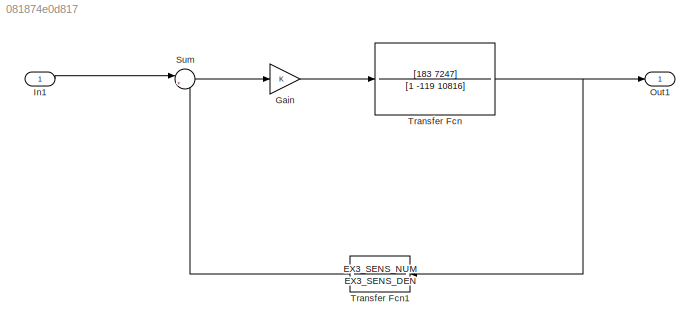
MODEL slx_081874e0d817
KIND model
CONFIG AbsTol = auto
CONFIG EnableMultiTasking = off
CONFIG FixedStep = t(2)-t(1)
CONFIG MaxStep = Auto
CONFIG MinStep = Auto
CONFIG RelTol = 1e-3
CONFIG SampleTimeConstraint = Unconstrained
CONFIG SolverName = VariableStepAuto
CONFIG StartTime = t(1)
CONFIG StopTime = t(end)
BLOCK [Gain] Gain
  Gain = K
BLOCK [Inport] In1
BLOCK [Outport] Out1
BLOCK [Sum] Sum
  Inputs = |+-
BLOCK [TransferFcn] Transfer Fcn
  Denominator = [1 -119 10816]
  Numerator = [183 7247]
  ParameterTunability = Unconstrained
BLOCK [TransferFcn] Transfer Fcn1
  Denominator = EX3_SENS_DEN
  NameLocation = top
  Numerator = EX3_SENS_NUM
LINE Gain:1 -> Transfer Fcn:1
LINE In1:1 -> Sum:1
LINE Sum:1 -> Gain:1
LINE Transfer Fcn1:1 -> Sum:2
NET Transfer Fcn:1 -> Out1:1, Transfer Fcn1:1
note: NET lines group one-source signal fan-out (src -> all destinations, sorted); 1:1 wires keep LINE
